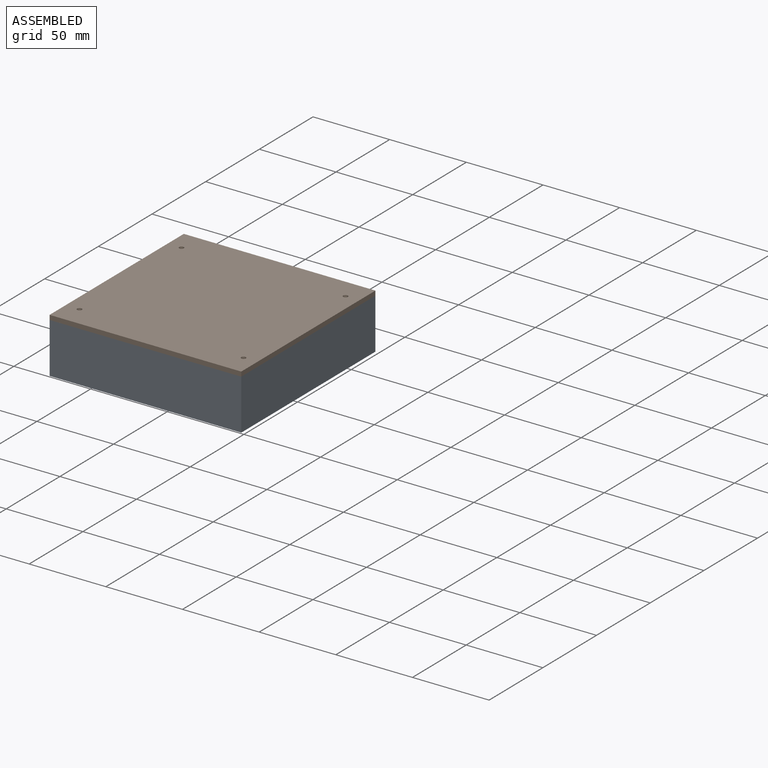
[diagram: assembled view]
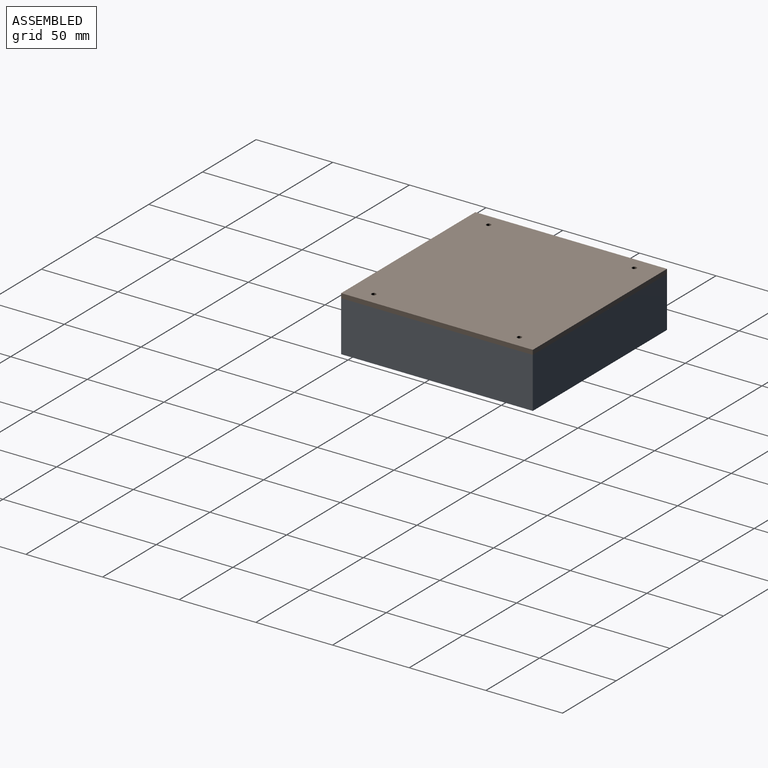
[diagram: assembled view, second angle]
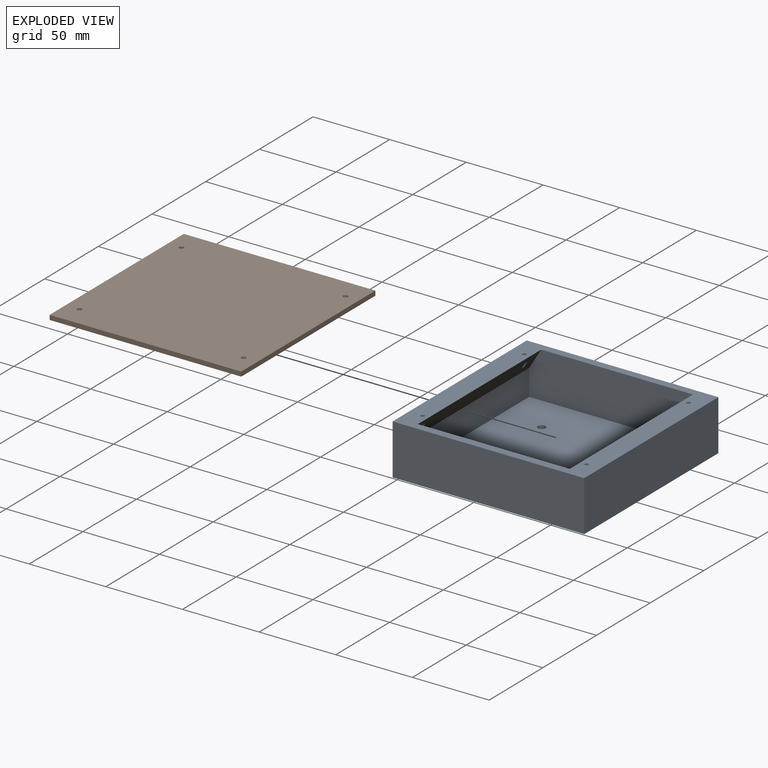
[diagram: exploded view]
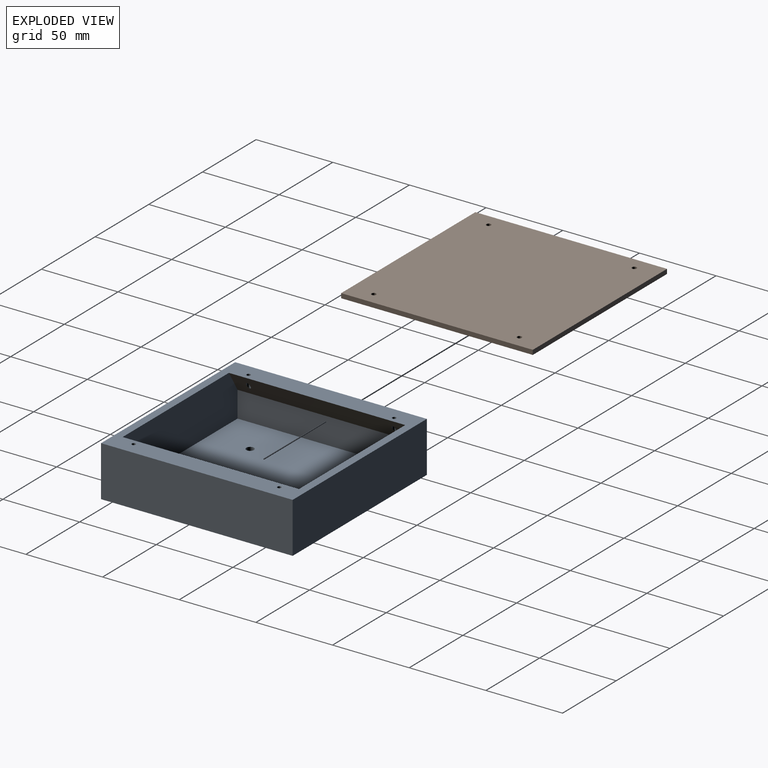
[diagram: exploded view, second angle]
ASSEMBLY  parts=2 mates=3
PART A: 21 faces, bbox 125x125x33 mm
  f0: plane 115x115mm, normal (0,0,1), area 13146.5mm2, adj f3,f4,f5,f6,f17,f18,f19,f20
  f1: plane 125x125mm, normal (0,0,-1), area 15546.5mm2, adj f7,f8,f9,f10,f17,f18,f19,f20
  f2: plane 125x125mm, normal (0,0,1), area 4220.4mm2, adj f5,f6,f7,f8,f9,f10,f11,f12
  f3: plane 115x17mm, normal (-1,0,0), area 1955mm2, adj f0,f5,f6,f12
  f4: plane 115x17mm, normal (1,0,0), area 1955mm2, adj f0,f5,f6,f11
  f5: plane 115x30mm, normal (0,1,0), area 3346mm2, adj f0,f2,f3,f4,f11,f12
  f6: plane 115x30mm, normal (0,-1,0), area 3346mm2, adj f0,f2,f3,f4,f11,f12
  f7: plane 125x33mm, normal (1,0,0), area 4125mm2, adj f1,f2,f8,f10
  f8: plane 125x33mm, normal (0,1,0), area 4125mm2, adj f1,f2,f7,f9
  f9: plane 125x33mm, normal (-1,0,0), area 4125mm2, adj f1,f2,f8,f10
  f10: plane 125x33mm, normal (0,-1,0), area 4125mm2, adj f1,f2,f7,f9
  f11: plane 115x13mm, normal (0.85,0,-0.52), area 1736.7mm2, adj f2,f4,f5,f6,f15,f16
  f12: plane 115x13mm, normal (-0.85,0,-0.52), area 1736.7mm2, adj f2,f3,f5,f6,f13,f14
  f13: cylinder r=1.25mm len=8.56mm, axis (0,0,1), area 51.1mm2, adj f2,f12
  f14: cylinder r=1.25mm len=8.56mm, axis (0,0,1), area 51.1mm2, adj f2,f12
  f15: cylinder r=1.25mm len=8.56mm, axis (0,0,1), area 51.1mm2, adj f2,f11
  f16: cylinder r=1.25mm len=8.56mm, axis (0,0,1), area 51.1mm2, adj f2,f11
  f17: cylinder r=2.5mm len=5mm, axis (0,0,-1), area 47.1mm2, adj f0,f1
  f18: cylinder r=2.5mm len=5mm, axis (0,0,-1), area 47.1mm2, adj f0,f1
  f19: cylinder r=2.5mm len=5mm, axis (0,0,-1), area 47.1mm2, adj f0,f1
  f20: cylinder r=2.5mm len=5mm, axis (0,0,-1), area 47.1mm2, adj f0,f1
PART B: 10 faces, bbox 125x125x3 mm
  f0: plane 125x3mm, normal (1,0,0), area 375mm2, adj f1,f6,f8,f9
  f1: plane 125x3mm, normal (0,1,0), area 375mm2, adj f0,f2,f8,f9
  f2: plane 125x3mm, normal (-1,0,0), area 375mm2, adj f1,f6,f8,f9
  f3: cylinder r=1.5mm len=3mm, axis (0,0,-1), area 28.3mm2, adj f8,f9
  f4: cylinder r=1.5mm len=3mm, axis (0,0,-1), area 28.3mm2, adj f8,f9
  f5: cylinder r=1.5mm len=3mm, axis (0,0,-1), area 28.3mm2, adj f8,f9
  f6: plane 125x3mm, normal (0,-1,0), area 375mm2, adj f0,f2,f8,f9
  f7: cylinder r=1.5mm len=3mm, axis (0,0,-1), area 28.3mm2, adj f8,f9
  f8: plane 125x125mm, normal (0,0,1), area 15596.7mm2, adj f0,f1,f2,f3,f4,f5,f6,f7
  f9: plane 125x125mm, normal (0,0,-1), area 15596.7mm2, adj f0,f1,f2,f3,f4,f5,f6,f7
PLACE A t=(-61.57,-41.29,9.2)mm
PLACE B t=(-61.57,-41.29,42.2)mm
MATE planar B.f0 <-> A.f7  axis (1,0,0) through (0.93,-41.29,43.7)mm
MATE planar B.f9 <-> A.f2  axis (0,0,-1) through (-61.57,-41.29,42.2)mm
MATE planar B.f6 <-> A.f10  axis (0,-1,0) through (-61.57,-103.79,43.7)mm
